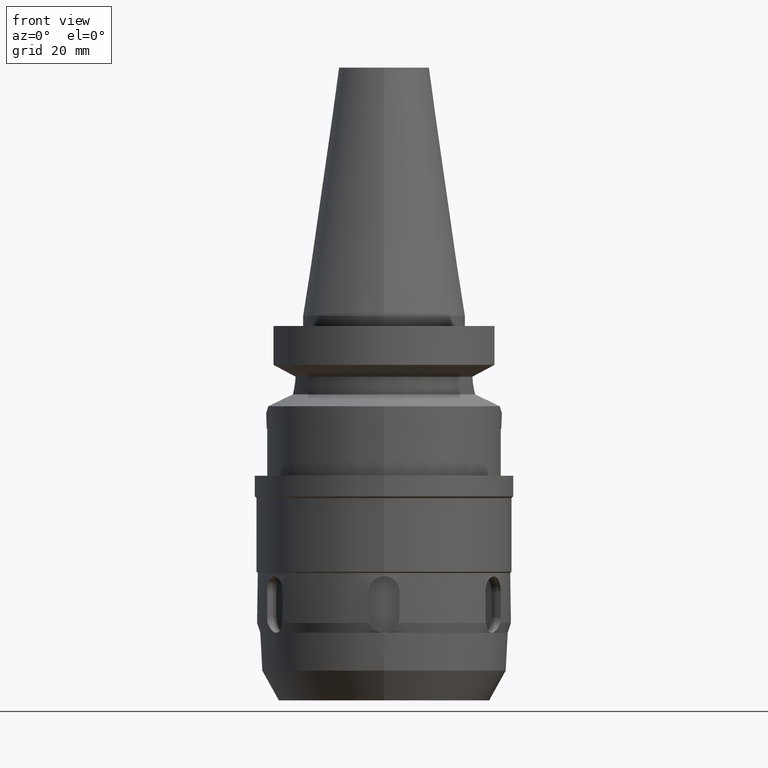
[diagram: clean part render]
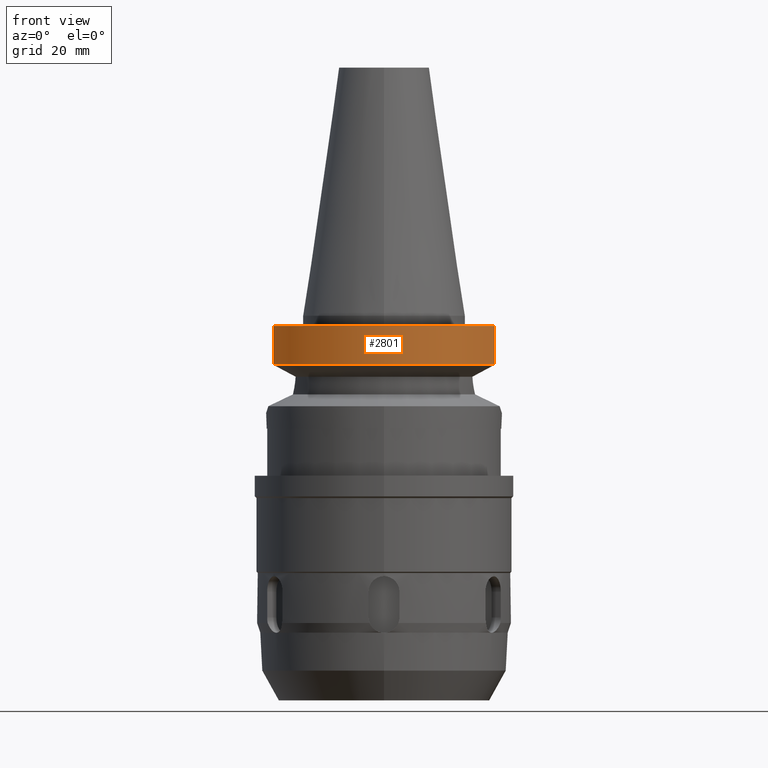
[diagram: same view with one face highlighted and labeled with its STEP entity id]
A machine part, front view. The second image highlights one B-rep face of the part: STEP entity #2801.
In plain terms, the highlighted cylindrical surface (partial cylindrical patch) has radius 23 mm, axis along (0, 0, -1).
Its self-contained STEP definition (entity closure, byte-faithful):
#138=CARTESIAN_POINT('',(0.E0,0.E0,-2.E0));
#139=DIRECTION('',(0.E0,0.E0,-1.E0));
#140=DIRECTION('',(9.367496997598E-1,-3.5E-1,0.E0));
#141=AXIS2_PLACEMENT_3D('',#138,#139,#140);
#146=CARTESIAN_POINT('',(0.E0,0.E0,-2.E0));
#147=DIRECTION('',(0.E0,0.E0,-1.E0));
#148=DIRECTION('',(0.E0,-1.E0,0.E0));
#149=AXIS2_PLACEMENT_3D('',#146,#147,#148);
#200=CARTESIAN_POINT('',(-2.154524325238E1,-8.049999577366E0,
-9.567211146629E0));
#217=CARTESIAN_POINT('',(0.E0,0.E0,-9.567208369711E0));
#218=DIRECTION('',(0.E0,0.E0,1.E0));
#219=DIRECTION('',(-9.367496997597E-1,-3.500000000001E-1,0.E0));
#220=AXIS2_PLACEMENT_3D('',#217,#218,#219);
#225=CARTESIAN_POINT('',(0.E0,0.E0,-9.567208369711E0));
#226=DIRECTION('',(0.E0,0.E0,1.E0));
#227=DIRECTION('',(0.E0,-1.E0,0.E0));
#228=AXIS2_PLACEMENT_3D('',#225,#226,#227);
#269=DIRECTION('',(2.086765879042E-8,-5.585079204314E-8,1.E0));
#270=VECTOR('',#269,7.567211146629E0);
#271=CARTESIAN_POINT('',(-2.154524325238E1,-8.049999577366E0,
-9.567211146629E0));
#272=LINE('',#271,#270);
#276=DIRECTION('',(-1.034196088077E-7,-2.767949557090E-7,-1.E0));
#277=VECTOR('',#276,7.567194606554E0);
#278=CARTESIAN_POINT('',(2.154524309447E1,-8.05E0,-2.E0));
#279=LINE('',#278,#277);
#2552=VERTEX_POINT('',#200);
#2553=CARTESIAN_POINT('',(0.E0,-2.3E1,-9.567208369711E0));
#2554=CARTESIAN_POINT('',(2.154524309447E1,-8.050000000001E0,
-9.567208369711E0));
#2555=VERTEX_POINT('',#2553);
#2556=VERTEX_POINT('',#2554);
#2563=CARTESIAN_POINT('',(-2.154524309447E1,-8.05E0,-2.E0));
#2564=VERTEX_POINT('',#2563);
#2577=CARTESIAN_POINT('',(2.154524309447E1,-8.05E0,-2.E0));
#2578=VERTEX_POINT('',#2577);
#2579=CARTESIAN_POINT('',(0.E0,-2.3E1,-2.E0));
#2580=VERTEX_POINT('',#2579);
#2787=CARTESIAN_POINT('',(0.E0,0.E0,5.457E1));
#2788=DIRECTION('',(0.E0,0.E0,-1.E0));
#2789=DIRECTION('',(0.E0,-1.E0,0.E0));
#2790=AXIS2_PLACEMENT_3D('',#2787,#2788,#2789);
#2791=CYLINDRICAL_SURFACE('',#2790,2.3E1);
#2792=ORIENTED_EDGE('',*,*,#2759,.T.);
#2793=ORIENTED_EDGE('',*,*,#2720,.F.);
#2794=ORIENTED_EDGE('',*,*,#2718,.F.);
#2796=ORIENTED_EDGE('',*,*,#2795,.T.);
#2797=ORIENTED_EDGE('',*,*,#2772,.F.);
#2798=ORIENTED_EDGE('',*,*,#2770,.F.);
#2799=EDGE_LOOP('',(#2792,#2793,#2794,#2796,#2797,#2798));
#2800=FACE_OUTER_BOUND('',#2799,.F.);
#142=CIRCLE('',#141,2.3E1);
#150=CIRCLE('',#149,2.3E1);
#221=CIRCLE('',#220,2.3E1);
#229=CIRCLE('',#228,2.3E1);
#2718=EDGE_CURVE('',#2578,#2580,#142,.T.);
#2720=EDGE_CURVE('',#2580,#2564,#150,.T.);
#2759=EDGE_CURVE('',#2552,#2564,#272,.T.);
#2770=EDGE_CURVE('',#2552,#2555,#221,.T.);
#2772=EDGE_CURVE('',#2555,#2556,#229,.T.);
#2795=EDGE_CURVE('',#2578,#2556,#279,.T.);
#2801=ADVANCED_FACE('',(#2800),#2791,.T.);